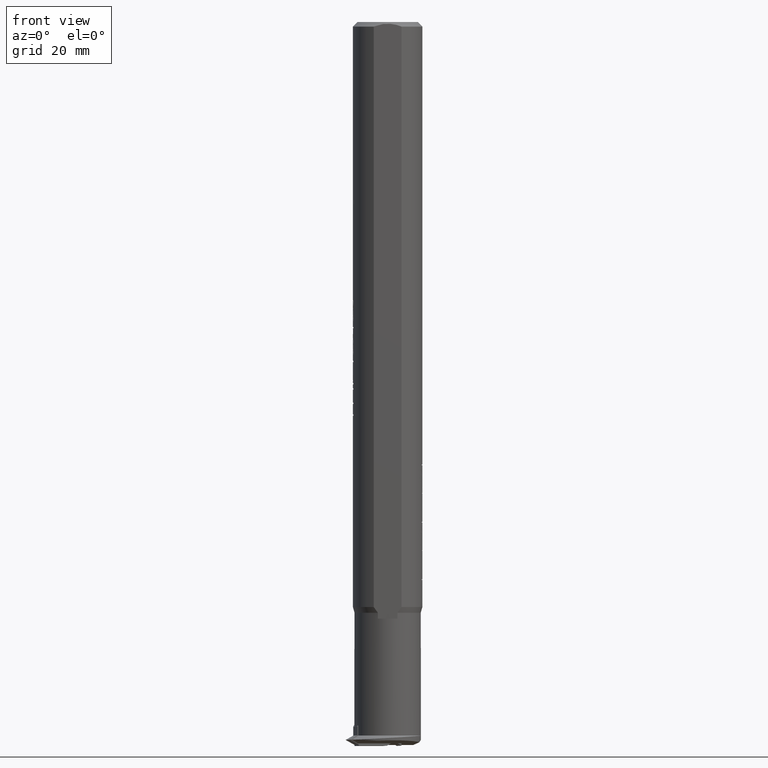
[diagram: clean part render]
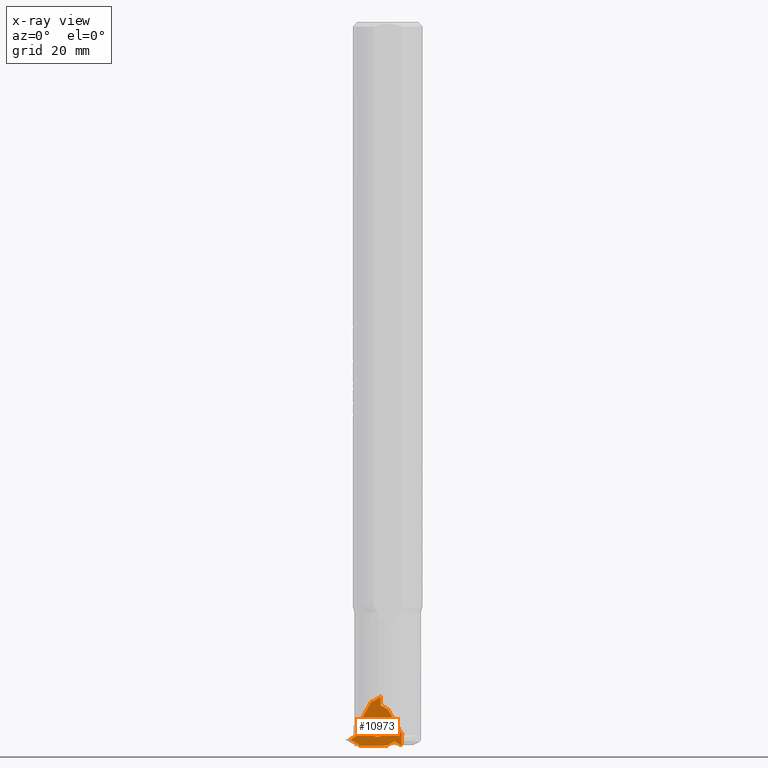
[diagram: x-ray — body ghosted, one internal face saturated and labeled with its STEP entity id]
A machine part, front view, then the same camera in x-ray: the body is ghosted and one INTERNAL B-rep face — a face not visible from any outside direction — is saturated and labeled: STEP entity #10973.
In plain terms, the highlighted planar face has unit normal (0.2588, -0.9658, 0.0175).
Its self-contained STEP definition (entity closure, byte-faithful):
#18 = VERTEX_POINT ( 'NONE', #13739 ) ;
#308 = DIRECTION ( 'NONE',  ( -0.4999238475781838109, 0.2325727330963424100, 0.8342577961533966802 ) ) ;
#383 = EDGE_CURVE ( 'NONE', #10037, #13524, #1838, .T. ) ;
#521 = EDGE_CURVE ( 'NONE', #6985, #6945, #3681, .T. ) ;
#816 = LINE ( 'NONE', #14604, #15053 ) ;
#1436 = ORIENTED_EDGE ( 'NONE', *, *, #9802, .T. ) ;
#1462 = CARTESIAN_POINT ( 'NONE',  ( 32.59333582594024392, 19.75367082790017648, 31.87851917744948693 ) ) ;
#1476 = CARTESIAN_POINT ( 'NONE',  ( 37.01315405012255155, 18.25564662741020072, 26.58589455995759465 ) ) ;
#1511 = CARTESIAN_POINT ( 'NONE',  ( 37.07659505258599353, 20.28834213525159669, 34.17629600837018700 ) ) ;
#1733 = LINE ( 'NONE', #10318, #8355 ) ;
#1838 = LINE ( 'NONE', #1462, #13281 ) ;
#1931 = CARTESIAN_POINT ( 'NONE',  ( 38.80591411225912424, 19.58736230270359968, 31.67683099704738581 ) ) ;
#2077 = CARTESIAN_POINT ( 'NONE',  ( 31.83359072860379868, 19.42584406641294947, 30.60381493247615836 ) ) ;
#2172 = LINE ( 'NONE', #2348, #6873 ) ;
#2178 = DIRECTION ( 'NONE',  ( 0.4999238475781844770, -0.2325727330963381634, -0.8342577961533974573 ) ) ;
#2233 = VERTEX_POINT ( 'NONE', #9730 ) ;
#2254 = DIRECTION ( 'NONE',  ( 0.4999238475782004643, 0.2157150029876788166, 0.8387748113222247559 ) ) ;
#2283 = DIRECTION ( 'NONE',  ( -0.4999238475781956348, -0.2157150029876686304, -0.8387748113222303070 ) ) ;
#2348 = CARTESIAN_POINT ( 'NONE',  ( 31.83359072860379868, 19.42584406641294947, 30.60381493247615481 ) ) ;
#2362 = VERTEX_POINT ( 'NONE', #8839 ) ;
#2477 = VERTEX_POINT ( 'NONE', #4277 ) ;
#2563 = DIRECTION ( 'NONE',  ( 0.4999238475781904723, -0.2325727330963401895, -0.8342577961533933495 ) ) ;
#2589 = LINE ( 'NONE', #2735, #10483 ) ;
#2669 = ORIENTED_EDGE ( 'NONE', *, *, #3918, .T. ) ;
#2735 = CARTESIAN_POINT ( 'NONE',  ( 36.97661028307035735, 20.33485668187086404, 34.34314756760086595 ) ) ;
#2841 = CARTESIAN_POINT ( 'NONE',  ( 37.07659505258599353, 20.28834213525159669, 34.17629600837018700 ) ) ;
#2944 = FACE_BOUND ( 'NONE', #9113, .T. ) ;
#3095 = EDGE_CURVE ( 'NONE', #8271, #14066, #15139, .T. ) ;
#3135 = ORIENTED_EDGE ( 'NONE', *, *, #383, .T. ) ;
#3170 = LINE ( 'NONE', #6867, #4397 ) ;
#3397 = CARTESIAN_POINT ( 'NONE',  ( 35.49366385544973923, 18.28126568492130133, 26.57902995418666237 ) ) ;
#3681 = LINE ( 'NONE', #8791, #15332 ) ;
#3730 = CIRCLE ( 'NONE', #10381, 1.599999999999997646 ) ;
#3826 = CARTESIAN_POINT ( 'NONE',  ( 31.11038939831967198, 19.01025816613821462, 29.00405367793154099 ) ) ;
#3918 = EDGE_CURVE ( 'NONE', #6784, #2477, #8075, .T. ) ;
#4125 = LINE ( 'NONE', #14445, #13499 ) ;
#4173 = EDGE_CURVE ( 'NONE', #10566, #18, #3170, .T. ) ;
#4277 = CARTESIAN_POINT ( 'NONE',  ( 38.80591411225910292, 18.27718396751599172, 26.78717888315111395 ) ) ;
#4397 = VECTOR ( 'NONE', #6789, 1000.000000000000114 ) ;
#4465 = DIRECTION ( 'NONE',  ( 0.8658935039207494855, -0.1440087450755001552, -0.4790510632590503359 ) ) ;
#4583 = ORIENTED_EDGE ( 'NONE', *, *, #4173, .T. ) ;
#4687 = ORIENTED_EDGE ( 'NONE', *, *, #8903, .T. ) ;
#4812 = VECTOR ( 'NONE', #11761, 1000.000000000000000 ) ;
#4819 = ORIENTED_EDGE ( 'NONE', *, *, #5670, .T. ) ;
#5176 = CARTESIAN_POINT ( 'NONE',  ( 35.65639387251648884, 19.20700430576176032, 30.04490822802615568 ) ) ;
#5217 = VERTEX_POINT ( 'NONE', #13828 ) ;
#5271 = CARTESIAN_POINT ( 'NONE',  ( 35.65639387251648884, 19.62111477792578285, 31.59038955008866623 ) ) ;
#5670 = EDGE_CURVE ( 'NONE', #2477, #10566, #11723, .T. ) ;
#5801 = LINE ( 'NONE', #3397, #9412 ) ;
#5941 = VERTEX_POINT ( 'NONE', #3826 ) ;
#6164 = EDGE_CURVE ( 'NONE', #6485, #6485, #3730, .T. ) ;
#6485 = VERTEX_POINT ( 'NONE', #5271 ) ;
#6784 = VERTEX_POINT ( 'NONE', #11223 ) ;
#6789 = DIRECTION ( 'NONE',  ( -0.4999238475781796476, 0.2325727330963418271, 0.8342577961533992337 ) ) ;
#6867 = CARTESIAN_POINT ( 'NONE',  ( 38.80591411225913134, 19.58736230270359258, 31.67683099704737160 ) ) ;
#6874 = CARTESIAN_POINT ( 'NONE',  ( 38.04616901492275360, 19.94080812170192019, 32.94467063624974656 ) ) ;
#6873 = VECTOR ( 'NONE', #12122, 1000.000000000000000 ) ;
#6920 = CARTESIAN_POINT ( 'NONE',  ( 38.80591411225910292, 17.88950865957493974, 25.34035493707514064 ) ) ;
#6945 = VERTEX_POINT ( 'NONE', #8229 ) ;
#6985 = VERTEX_POINT ( 'NONE', #1476 ) ;
#7020 = VERTEX_POINT ( 'NONE', #15017 ) ;
#7249 = DIRECTION ( 'NONE',  ( 0.9998476951563912696, -0.01685773010866480764, 0.004517015168815154656 ) ) ;
#7479 = DIRECTION ( 'NONE',  ( -0.8658935039207590334, -0.1148103000270151441, -0.4868747630300189755 ) ) ;
#7727 = EDGE_CURVE ( 'NONE', #5941, #5217, #1733, .T. ) ;
#7833 = PLANE ( 'NONE',  #10684 ) ;
#7918 = DIRECTION ( 'NONE',  ( 0.000000000000000000, -0.2588190451025144112, -0.9659258262890700886 ) ) ;
#8075 = LINE ( 'NONE', #9426, #12832 ) ;
#8229 = CARTESIAN_POINT ( 'NONE',  ( 37.75182307808046289, 17.91200573986698430, 25.35322602786769863 ) ) ;
#8271 = VERTEX_POINT ( 'NONE', #15582 ) ;
#8292 = ORIENTED_EDGE ( 'NONE', *, *, #6164, .T. ) ;
#8355 = VECTOR ( 'NONE', #4465, 1000.000000000000000 ) ;
#8559 = ORIENTED_EDGE ( 'NONE', *, *, #14222, .T. ) ;
#8564 = ORIENTED_EDGE ( 'NONE', *, *, #521, .T. ) ;
#8635 = VECTOR ( 'NONE', #308, 1000.000000000000114 ) ;
#8791 = CARTESIAN_POINT ( 'NONE',  ( 37.01315405012255866, 18.25564662741019717, 26.58589455995757334 ) ) ;
#8795 = LINE ( 'NONE', #1511, #8635 ) ;
#8839 = CARTESIAN_POINT ( 'NONE',  ( 30.35625267268797245, 19.45075242630268875, 30.59714075755893603 ) ) ;
#8903 = EDGE_CURVE ( 'NONE', #18, #8271, #9096, .T. ) ;
#8967 = CARTESIAN_POINT ( 'NONE',  ( 32.59333582594025103, 19.75367082790017292, 31.87851917744948693 ) ) ;
#9096 = LINE ( 'NONE', #6874, #4812 ) ;
#9113 = EDGE_LOOP ( 'NONE', ( #8292 ) ) ;
#9412 = VECTOR ( 'NONE', #7249, 1000.000000000000114 ) ;
#9426 = CARTESIAN_POINT ( 'NONE',  ( 38.60594457322782347, 18.28055551353772756, 26.78627548011734660 ) ) ;
#9448 = EDGE_CURVE ( 'NONE', #5217, #6985, #5801, .T. ) ;
#9645 = ORIENTED_EDGE ( 'NONE', *, *, #9448, .T. ) ;
#9683 = EDGE_CURVE ( 'NONE', #6945, #6784, #816, .T. ) ;
#9730 = CARTESIAN_POINT ( 'NONE',  ( 31.21037416783529750, 19.05340116673574258, 29.17180864019596243 ) ) ;
#9754 = ORIENTED_EDGE ( 'NONE', *, *, #3095, .T. ) ;
#9802 = EDGE_CURVE ( 'NONE', #13524, #2362, #2172, .T. ) ;
#10037 = VERTEX_POINT ( 'NONE', #8967 ) ;
#10039 = DIRECTION ( 'NONE',  ( -0.4999238475782182833, -0.2157150029876738762, -0.8387748113222154300 ) ) ;
#10046 = DIRECTION ( 'NONE',  ( 0.000000000000000000, 0.2588190451025141336, 0.9659258262890700886 ) ) ;
#10318 = CARTESIAN_POINT ( 'NONE',  ( 31.11038939831967198, 19.01025816613821462, 29.00405367793154099 ) ) ;
#10381 = AXIS2_PLACEMENT_3D ( 'NONE', #5176, #13656, #10046 ) ;
#10481 = EDGE_CURVE ( 'NONE', #2233, #5941, #11975, .T. ) ;
#10483 = VECTOR ( 'NONE', #7479, 1000.000000000000114 ) ;
#10566 = VERTEX_POINT ( 'NONE', #1931 ) ;
#10684 = AXIS2_PLACEMENT_3D ( 'NONE', #14173, #11609, #7918 ) ;
#10731 = ORIENTED_EDGE ( 'NONE', *, *, #11550, .T. ) ;
#10824 = ORIENTED_EDGE ( 'NONE', *, *, #7727, .T. ) ;
#10827 = EDGE_CURVE ( 'NONE', #14066, #7020, #8795, .T. ) ;
#10973 = ADVANCED_FACE ( 'NONE', ( #15211, #2944 ), #7833, .T. ) ;
#11223 = CARTESIAN_POINT ( 'NONE',  ( 38.60594457322782347, 18.28055551353772756, 26.78627548011734660 ) ) ;
#11550 = EDGE_CURVE ( 'NONE', #2362, #2233, #4125, .T. ) ;
#11609 = DIRECTION ( 'NONE',  ( -0.01745240643727642704, -0.9657787111071595154, 0.2587796257083271323 ) ) ;
#11723 = LINE ( 'NONE', #6920, #14211 ) ;
#11761 = DIRECTION ( 'NONE',  ( 0.4999238475782075697, 0.2157150029876742925, 0.8387748113222217583 ) ) ;
#11789 = ORIENTED_EDGE ( 'NONE', *, *, #9683, .T. ) ;
#11975 = LINE ( 'NONE', #13260, #12512 ) ;
#12122 = DIRECTION ( 'NONE',  ( -0.9998476951563913806, 0.01685773010866071023, -0.004517015168825019161 ) ) ;
#12260 = ORIENTED_EDGE ( 'NONE', *, *, #10481, .T. ) ;
#12512 = VECTOR ( 'NONE', #2283, 1000.000000000000227 ) ;
#12651 = CARTESIAN_POINT ( 'NONE',  ( 38.78483804288069337, 20.25954064935538668, 34.18401334325686491 ) ) ;
#12751 = ORIENTED_EDGE ( 'NONE', *, *, #10827, .T. ) ;
#12832 = VECTOR ( 'NONE', #14182, 1000.000000000000114 ) ;
#13077 = VECTOR ( 'NONE', #13853, 1000.000000000000227 ) ;
#13086 = DIRECTION ( 'NONE',  ( -0.000000000000000000, 0.2588190451025144112, 0.9659258262890700886 ) ) ;
#13260 = CARTESIAN_POINT ( 'NONE',  ( 31.21037416783529750, 19.05340116673574258, 29.17180864019596598 ) ) ;
#13281 = VECTOR ( 'NONE', #10039, 1000.000000000000227 ) ;
#13499 = VECTOR ( 'NONE', #2178, 1000.000000000000000 ) ;
#13524 = VERTEX_POINT ( 'NONE', #2077 ) ;
#13656 = DIRECTION ( 'NONE',  ( 0.01745240643727642357, 0.9657787111071595154, -0.2587796257083272433 ) ) ;
#13739 = CARTESIAN_POINT ( 'NONE',  ( 38.04616901492276071, 19.94080812170192019, 32.94467063624975367 ) ) ;
#13828 = CARTESIAN_POINT ( 'NONE',  ( 35.49366385544973923, 18.28126568492129778, 26.57902995418666592 ) ) ;
#13853 = DIRECTION ( 'NONE',  ( -0.9998476951563912696, 0.01685773010866214311, -0.004517015168822146459 ) ) ;
#14066 = VERTEX_POINT ( 'NONE', #2841 ) ;
#14173 = CARTESIAN_POINT ( 'NONE',  ( 37.74128504339122259, 17.90745862295010937, 25.33554525888459352 ) ) ;
#14182 = DIRECTION ( 'NONE',  ( 0.9998476951563912696, -0.01685773010866648686, 0.004517015168830468795 ) ) ;
#14211 = VECTOR ( 'NONE', #13086, 999.9999999999998863 ) ;
#14222 = EDGE_CURVE ( 'NONE', #7020, #10037, #2589, .T. ) ;
#14445 = CARTESIAN_POINT ( 'NONE',  ( 30.35625267268796890, 19.45075242630268875, 30.59714075755893248 ) ) ;
#14604 = CARTESIAN_POINT ( 'NONE',  ( 37.75182307808046289, 17.91200573986698430, 25.35322602786769863 ) ) ;
#15017 = CARTESIAN_POINT ( 'NONE',  ( 36.97661028307035735, 20.33485668187086404, 34.34314756760086595 ) ) ;
#15053 = VECTOR ( 'NONE', #2254, 1000.000000000000227 ) ;
#15139 = LINE ( 'NONE', #12651, #13077 ) ;
#15211 = FACE_OUTER_BOUND ( 'NONE', #15262, .T. ) ;
#15262 = EDGE_LOOP ( 'NONE', ( #9645, #8564, #11789, #2669, #4819, #4583, #4687, #9754, #12751, #8559, #3135, #1436, #10731, #12260, #10824 ) ) ;
#15332 = VECTOR ( 'NONE', #2563, 1000.000000000000000 ) ;
#15582 = CARTESIAN_POINT ( 'NONE',  ( 38.78483804288069337, 20.25954064935538668, 34.18401334325686491 ) ) ;